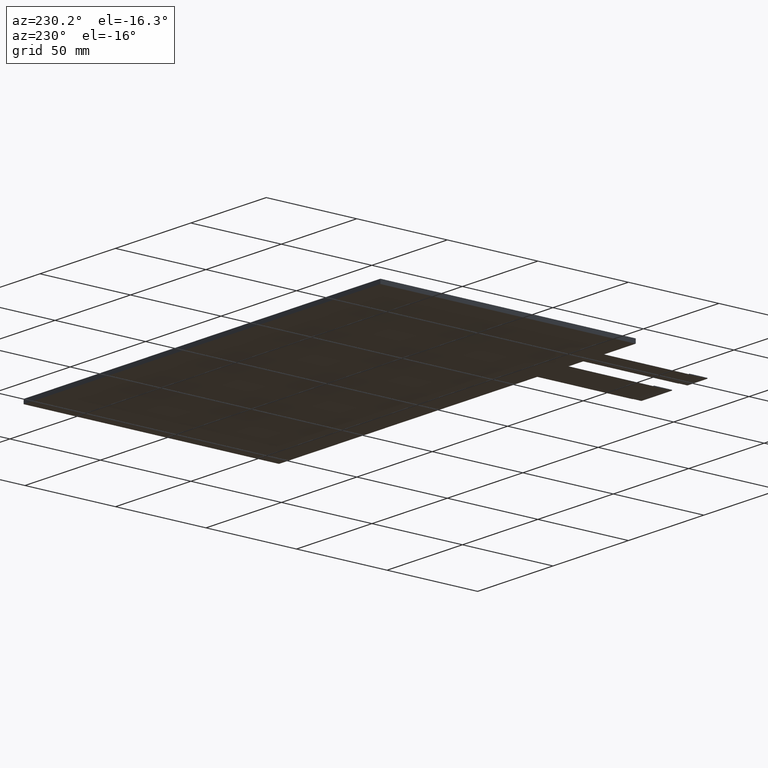
[diagram: clean part render]
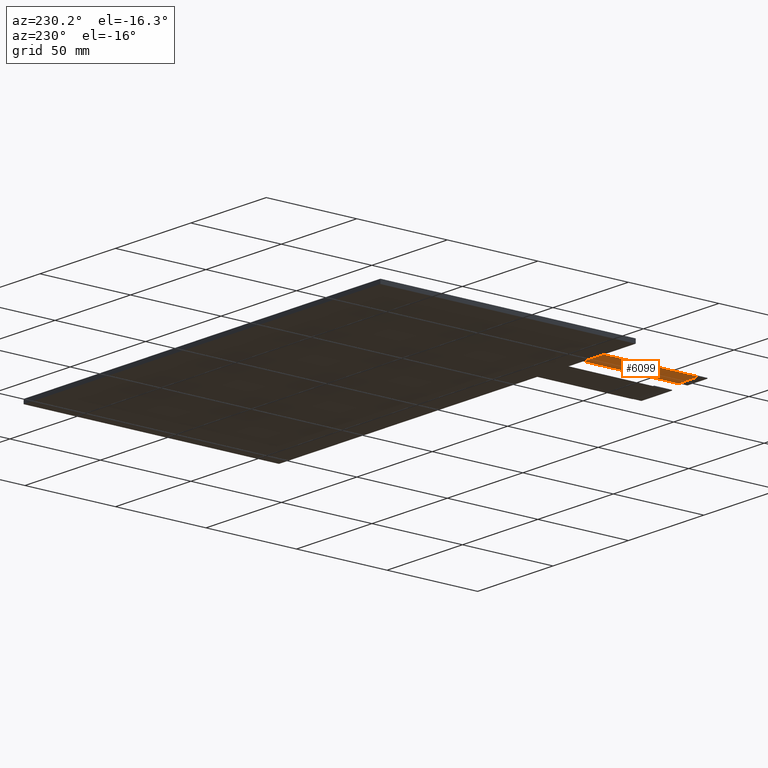
[diagram: same view with one face highlighted and labeled with its STEP entity id]
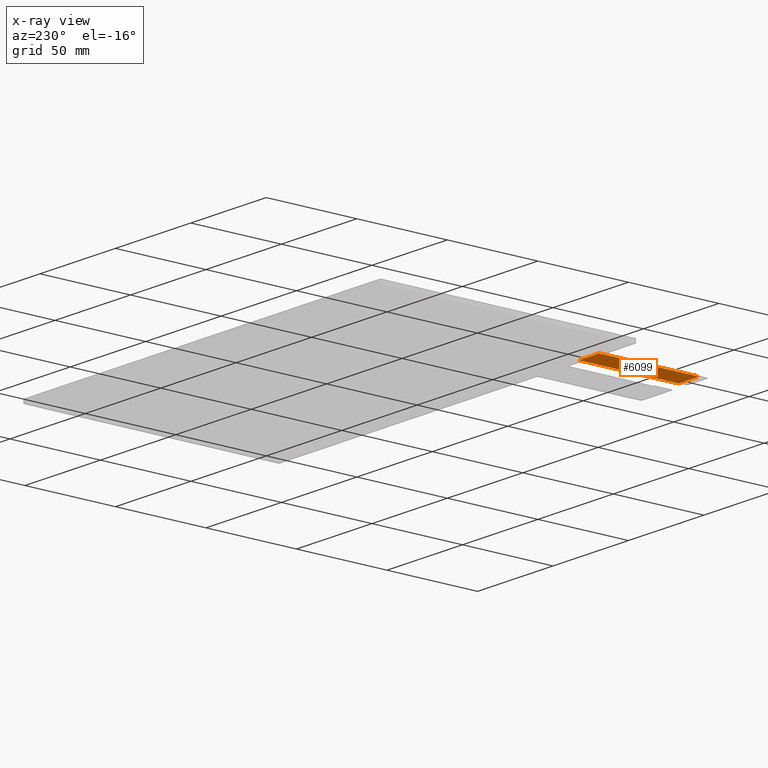
[diagram: x-ray of the same camera — body ghosted, the highlighted face saturated]
A machine part, auxiliary view. The second image highlights one B-rep face of the part: STEP entity #6099.
The next image is the same camera in x-ray: the body ghosted, the highlighted face saturated — about 0% of this face is hidden behind the body in this view.
In plain terms, the highlighted planar face has unit normal (0, 0, -1).
Its self-contained STEP definition (entity closure, byte-faithful):
#329=PLANE('',#6419);
#621=FACE_OUTER_BOUND('',#913,.T.);
#913=EDGE_LOOP('',(#5774,#5775,#5776,#5777));
#1037=LINE('',#8126,#1893);
#1742=LINE('',#9544,#2598);
#1750=LINE('',#9560,#2606);
#1765=LINE('',#9590,#2621);
#1893=VECTOR('',#6561,10.);
#2598=VECTOR('',#7814,10.);
#2606=VECTOR('',#7826,10.);
#2621=VECTOR('',#7859,10.);
#2757=VERTEX_POINT('',#8123);
#2758=VERTEX_POINT('',#8125);
#3197=VERTEX_POINT('',#9542);
#3203=VERTEX_POINT('',#9558);
#3337=EDGE_CURVE('',#2758,#2757,#1037,.T.);
#4046=EDGE_CURVE('',#2757,#3197,#1742,.T.);
#4054=EDGE_CURVE('',#3197,#3203,#1750,.T.);
#4069=EDGE_CURVE('',#2758,#3203,#1765,.T.);
#5774=ORIENTED_EDGE('',*,*,#4046,.T.);
#5775=ORIENTED_EDGE('',*,*,#4054,.T.);
#5776=ORIENTED_EDGE('',*,*,#4069,.F.);
#5777=ORIENTED_EDGE('',*,*,#3337,.T.);
#6099=ADVANCED_FACE('',(#621),#329,.T.);
#6419=AXIS2_PLACEMENT_3D('',#9589,#7857,#7858);
#6561=DIRECTION('',(2.96059473233375E-16,-1.,0.));
#7814=DIRECTION('',(-1.,0.,0.));
#7826=DIRECTION('',(-5.9211894646675E-16,1.,0.));
#7857=DIRECTION('center_axis',(0.,0.,-1.));
#7858=DIRECTION('ref_axis',(-1.,0.,0.));
#7859=DIRECTION('',(-1.,-1.12665338651179E-16,0.));
#8123=CARTESIAN_POINT('',(-80.61,-127.08,-1.2));
#8125=CARTESIAN_POINT('',(-80.61,-72.08,-1.2));
#8126=CARTESIAN_POINT('',(-80.61,-132.08,-1.2));
#9542=CARTESIAN_POINT('',(-94.11,-127.08,-1.2));
#9544=CARTESIAN_POINT('',(-83.985,-127.08,-1.2));
#9558=CARTESIAN_POINT('',(-94.11,-72.08,-1.2));
#9560=CARTESIAN_POINT('',(-94.11,-72.08,-1.2));
#9589=CARTESIAN_POINT('Origin',(-87.36,-102.08,-1.2));
#9590=CARTESIAN_POINT('',(15.39,-72.08,-1.2));